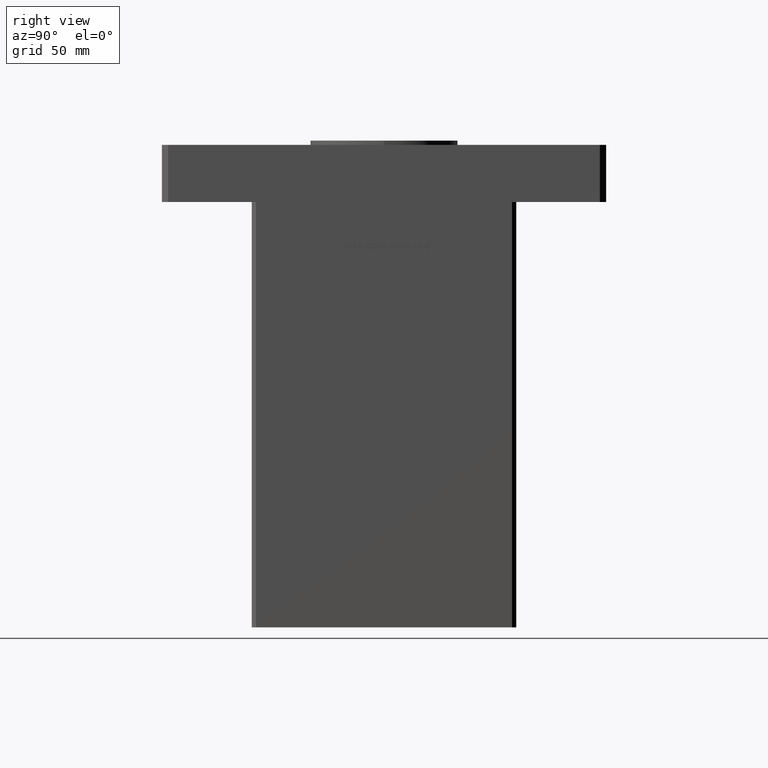
[diagram: clean part render]
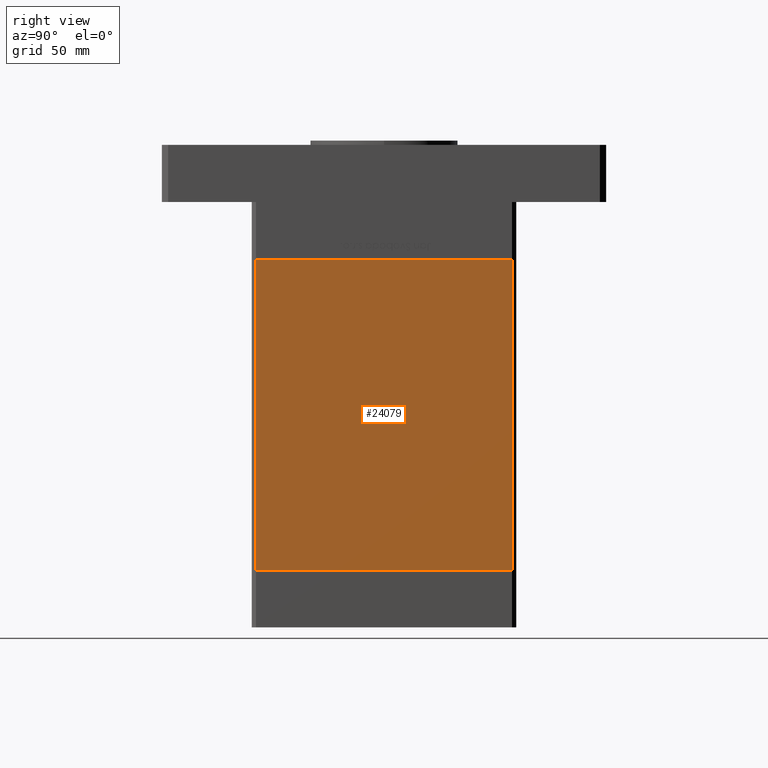
[diagram: same view with one face highlighted and labeled with its STEP entity id]
A machine part, right view. The second image highlights one B-rep face of the part: STEP entity #24079.
In plain terms, the highlighted planar face has unit normal (1, -0, 0).
Its self-contained STEP definition (entity closure, byte-faithful):
#405 = ORIENTED_EDGE ( 'NONE', *, *, #50601, .T. ) ;
#2063 = CARTESIAN_POINT ( 'NONE',  ( 75.00000000000001421, 60.50000000000000000, 147.0000000000000000 ) ) ;
#3551 = ORIENTED_EDGE ( 'NONE', *, *, #11901, .F. ) ;
#4109 = CARTESIAN_POINT ( 'NONE',  ( 75.00000000000001421, 60.50000000000000000, 147.0000000000000000 ) ) ;
#4845 = VECTOR ( 'NONE', #45392, 1000.000000000000000 ) ;
#6378 = DIRECTION ( 'NONE',  ( 2.293849224432141861E-16, 1.000000000000000000, 0.000000000000000000 ) ) ;
#8000 = EDGE_CURVE ( 'NONE', #19634, #8500, #12473, .T. ) ;
#8140 = FACE_OUTER_BOUND ( 'NONE', #23676, .T. ) ;
#8500 = VERTEX_POINT ( 'NONE', #49207 ) ;
#11709 = VECTOR ( 'NONE', #43759, 1000.000000000000000 ) ;
#11821 = VERTEX_POINT ( 'NONE', #15483 ) ;
#11901 = EDGE_CURVE ( 'NONE', #15268, #19634, #37532, .T. ) ;
#12172 = DIRECTION ( 'NONE',  ( 1.000000000000000000, -2.293849224432141861E-16, 0.000000000000000000 ) ) ;
#12473 = LINE ( 'NONE', #49869, #47441 ) ;
#15268 = VERTEX_POINT ( 'NONE', #4109 ) ;
#15483 = CARTESIAN_POINT ( 'NONE',  ( 74.99999999999998579, -60.50000000000000000, 147.0000000000000000 ) ) ;
#15964 = CARTESIAN_POINT ( 'NONE',  ( 75.00000000000001421, 60.50000000000000000, 147.0000000000000000 ) ) ;
#16359 = AXIS2_PLACEMENT_3D ( 'NONE', #15964, #12172, #6378 ) ;
#17355 = DIRECTION ( 'NONE',  ( -0.000000000000000000, -0.000000000000000000, -1.000000000000000000 ) ) ;
#19634 = VERTEX_POINT ( 'NONE', #24500 ) ;
#23676 = EDGE_LOOP ( 'NONE', ( #46319, #3551, #26404, #405 ) ) ;
#24079 = ADVANCED_FACE ( 'NONE', ( #8140 ), #31823, .T. ) ;
#24500 = CARTESIAN_POINT ( 'NONE',  ( 75.00000000000001421, 60.50000000000000000, 0.000000000000000000 ) ) ;
#26404 = ORIENTED_EDGE ( 'NONE', *, *, #51462, .T. ) ;
#28877 = DIRECTION ( 'NONE',  ( -2.293849224432141861E-16, -1.000000000000000000, 0.000000000000000000 ) ) ;
#31823 = PLANE ( 'NONE',  #16359 ) ;
#37328 = CARTESIAN_POINT ( 'NONE',  ( 74.99999999999998579, -60.50000000000000000, 147.0000000000000000 ) ) ;
#37532 = LINE ( 'NONE', #45594, #39674 ) ;
#38943 = LINE ( 'NONE', #2063, #11709 ) ;
#39674 = VECTOR ( 'NONE', #17355, 1000.000000000000000 ) ;
#43759 = DIRECTION ( 'NONE',  ( -2.293849224432141861E-16, -1.000000000000000000, 0.000000000000000000 ) ) ;
#45392 = DIRECTION ( 'NONE',  ( -0.000000000000000000, -0.000000000000000000, -1.000000000000000000 ) ) ;
#45594 = CARTESIAN_POINT ( 'NONE',  ( 75.00000000000001421, 60.50000000000000000, 147.0000000000000000 ) ) ;
#46319 = ORIENTED_EDGE ( 'NONE', *, *, #8000, .F. ) ;
#47441 = VECTOR ( 'NONE', #28877, 1000.000000000000000 ) ;
#49207 = CARTESIAN_POINT ( 'NONE',  ( 74.99999999999998579, -60.50000000000000000, 0.000000000000000000 ) ) ;
#49869 = CARTESIAN_POINT ( 'NONE',  ( 75.00000000000001421, 60.50000000000000000, 0.000000000000000000 ) ) ;
#49973 = LINE ( 'NONE', #37328, #4845 ) ;
#50601 = EDGE_CURVE ( 'NONE', #11821, #8500, #49973, .T. ) ;
#51462 = EDGE_CURVE ( 'NONE', #15268, #11821, #38943, .T. ) ;